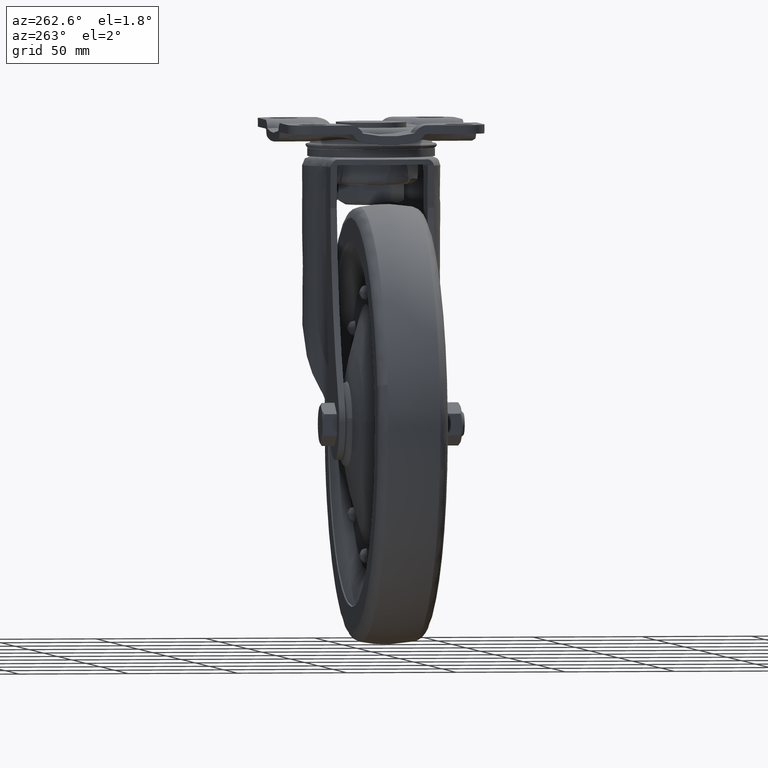
[diagram: clean part render]
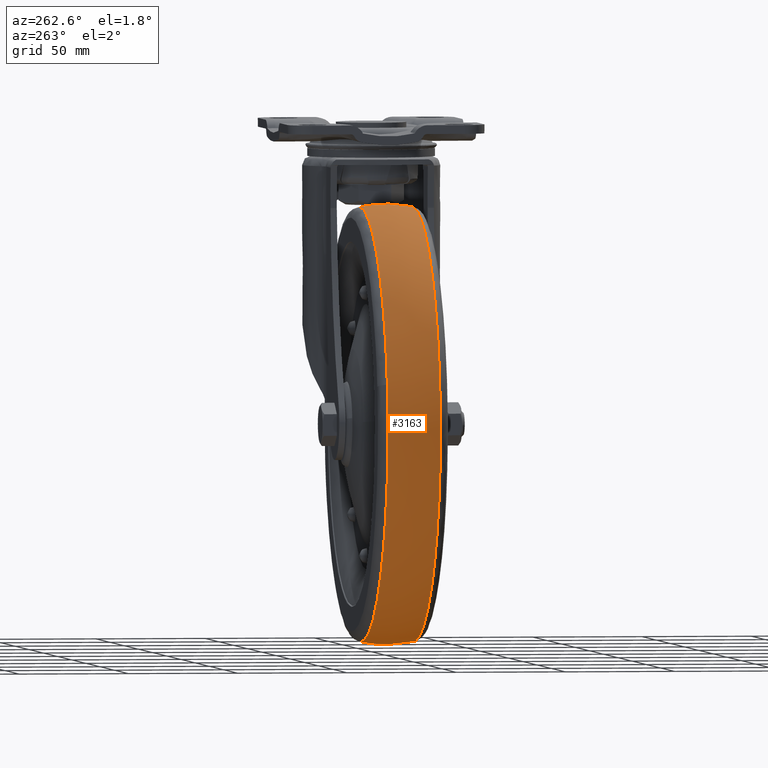
[diagram: same view with one face highlighted and labeled with its STEP entity id]
A machine part, auxiliary view. The second image highlights one B-rep face of the part: STEP entity #3163.
In plain terms, the highlighted face is a freeform B-spline surface patch.
Its self-contained STEP definition (entity closure, byte-faithful):
#2941=CARTESIAN_POINT('',(-149.542122621818010,12.000001599546319,-114.785526853800500));
#2942=VERTEX_POINT('',#2941);
#2956=CARTESIAN_POINT('',(-53.0,12.000002706169269,-36.941479722300528));
#2957=VERTEX_POINT('',#2956);
#2958=CARTESIAN_POINT('',(-53.0,12.000002706169269,-36.941479722300528));
#2959=CARTESIAN_POINT('',(-132.654749233212950,12.000002693461058,-36.941479735535076));
#2960=CARTESIAN_POINT('',(-149.542122621818040,12.000001599546312,-114.785526853800460));
#2968=(BOUNDED_CURVE()B_SPLINE_CURVE(2,(#2958,#2959,#2960),.UNSPECIFIED.,.F.,.U.)B_SPLINE_CURVE_WITH_KNOTS((3,3),(0.500000000000000,0.713703257981370),.UNSPECIFIED.)CURVE()GEOMETRIC_REPRESENTATION_ITEM()RATIONAL_B_SPLINE_CURVE((1.0,0.749631059595660,0.927299385285327))REPRESENTATION_ITEM(''));
#2969=EDGE_CURVE('',#2957,#2942,#2968,.T.);
#3035=CARTESIAN_POINT('',(-53.0,11.999999961965480,-234.516986831262300));
#3036=VERTEX_POINT('',#3035);
#3050=CARTESIAN_POINT('',(-149.542122621818010,12.000001599546321,-114.785526853800550));
#3051=CARTESIAN_POINT('',(-151.787753710058780,12.000001456869487,-125.136989282534260));
#3052=CARTESIAN_POINT('',(-151.787753716600010,12.000001311112250,-135.729233300687210));
#3053=CARTESIAN_POINT('',(-151.787753777605840,11.999999951718568,-234.516986841933600));
#3054=CARTESIAN_POINT('',(-53.0,11.999999961965480,-234.516986831262300));
#3062=(BOUNDED_CURVE()B_SPLINE_CURVE(2,(#3050,#3051,#3052,#3053,#3054),.UNSPECIFIED.,.F.,.U.)B_SPLINE_CURVE_WITH_KNOTS((3,2,3),(0.713703257981370,0.750000000000000,1.0),.UNSPECIFIED.)CURVE()GEOMETRIC_REPRESENTATION_ITEM()RATIONAL_B_SPLINE_CURVE((0.927299385285328,0.957475721590888,1.0,0.707106781186548,1.0))REPRESENTATION_ITEM(''));
#3063=EDGE_CURVE('',#2942,#3036,#3062,.T.);
#3070=CARTESIAN_POINT('',(-50.245239521025617,-13.170889275211115,-37.192683083847527));
#3071=CARTESIAN_POINT('',(-50.162390055384634,0.000004381946002,-34.229194762922361));
#3072=CARTESIAN_POINT('',(-50.245239573497116,13.170897616799328,-37.192684960729039));
#3073=CARTESIAN_POINT('',(-51.614598242837971,-13.170889275211119,-37.192683083847527));
#3074=CARTESIAN_POINT('',(-51.572932262744601,0.000004381946002,-34.229194762922354));
#3075=CARTESIAN_POINT('',(-51.614598269226505,13.170897616799333,-37.192684960729046));
#3076=CARTESIAN_POINT('',(-151.536549912854700,-13.170889275211128,-37.192683083847527));
#3077=CARTESIAN_POINT('',(-154.500038233779890,0.000004381945997,-34.229194762922361));
#3078=CARTESIAN_POINT('',(-151.536548035973170,13.170897616799326,-37.192684960729054));
#3079=CARTESIAN_POINT('',(-151.536549912854700,-13.170889275211124,-135.729232996702190));
#3080=CARTESIAN_POINT('',(-154.500038233779890,0.000004381946002,-135.729232996702250));
#3081=CARTESIAN_POINT('',(-151.536548035973170,13.170897616799335,-135.729232996702220));
#3082=CARTESIAN_POINT('',(-151.536549912854700,-13.170889275211128,-234.265782909556890));
#3083=CARTESIAN_POINT('',(-154.500038233779890,0.000004381945997,-237.229271230482110));
#3084=CARTESIAN_POINT('',(-151.536548035973170,13.170897616799326,-234.265781032675360));
#3085=CARTESIAN_POINT('',(-51.614598242837964,-13.170889275211119,-234.265782909556860));
#3086=CARTESIAN_POINT('',(-51.572932262744594,0.000004381946002,-237.229271230482110));
#3087=CARTESIAN_POINT('',(-51.614598269226498,13.170897616799332,-234.265781032675360));
#3088=CARTESIAN_POINT('',(-50.245239521025596,-13.170889275211126,-234.265782909556950));
#3089=CARTESIAN_POINT('',(-50.162390055384598,0.000004381946002,-237.229271230482030));
#3090=CARTESIAN_POINT('',(-50.245239573497074,13.170897616799326,-234.265781032675420));
#3098=(BOUNDED_SURFACE()B_SPLINE_SURFACE(2,2,((#3070,#3073,#3076,#3079,#3082,#3085,#3088),(#3071,#3074,#3077,#3080,#3083,#3086,#3089),(#3072,#3075,#3078,#3081,#3084,#3087,#3090)),.UNSPECIFIED.,.F.,.F.,.U.)B_SPLINE_SURFACE_WITH_KNOTS((3,3),(3,1,2,1,3),(0.0,26.667002324519871),(0.0,3.313708498984759,168.999133448222610,334.684558397460420,337.998266896445220),.UNSPECIFIED.)GEOMETRIC_REPRESENTATION_ITEM()RATIONAL_B_SPLINE_SURFACE(((0.880871719492154,0.875771445849044,0.615657490050456,0.870671172205934,0.615657490050456,0.875771445849044,0.880871719492154),(0.859386515940814,0.854410642269874,0.600641085051932,0.849434768598934,0.600641085051932,0.854410642269874,0.859386515940814),(0.880871733439682,0.875771459715816,0.615657499798641,0.870671185991950,0.615657499798641,0.875771459715816,0.880871733439682)))REPRESENTATION_ITEM('')SURFACE());
#3099=CARTESIAN_POINT('',(-53.0,-11.999999999997019,-36.941479169905307));
#3100=VERTEX_POINT('',#3099);
#3101=CARTESIAN_POINT('',(-53.0,-11.999999999997012,-36.941479169905328));
#3102=CARTESIAN_POINT('',(-53.000000000000014,0.000001409464736,-34.491989139417591));
#3103=CARTESIAN_POINT('',(-53.0,12.000002706169289,-36.941479722300471));
#3111=(BOUNDED_CURVE()B_SPLINE_CURVE(2,(#3101,#3102,#3103),.UNSPECIFIED.,.F.,.U.)B_SPLINE_CURVE_WITH_KNOTS((3,3),(0.458261283577760,0.541738726029016),.UNSPECIFIED.)CURVE()GEOMETRIC_REPRESENTATION_ITEM()RATIONAL_B_SPLINE_CURVE((0.868829938584044,0.851276007093683,0.868829942624338))REPRESENTATION_ITEM(''));
#3112=EDGE_CURVE('',#3100,#2957,#3111,.T.);
#3113=ORIENTED_EDGE('',*,*,#3112,.T.);
#3114=ORIENTED_EDGE('',*,*,#2969,.T.);
#3115=ORIENTED_EDGE('',*,*,#3063,.T.);
#3116=CARTESIAN_POINT('',(-53.0,-11.999999999998510,-234.516986823498800));
#3117=VERTEX_POINT('',#3116);
#3118=CARTESIAN_POINT('',(-53.000000000000007,-11.999999999998503,-234.516986823498830));
#3119=CARTESIAN_POINT('',(-53.0,-0.000000019808866,-236.966476562237890));
#3120=CARTESIAN_POINT('',(-53.000000000000007,11.999999961965489,-234.516986831262300));
#3128=(BOUNDED_CURVE()B_SPLINE_CURVE(2,(#3118,#3119,#3120),.UNSPECIFIED.,.F.,.U.)B_SPLINE_CURVE_WITH_KNOTS((3,3),(0.458261283577755,0.541738716287229),.UNSPECIFIED.)CURVE()GEOMETRIC_REPRESENTATION_ITEM()RATIONAL_B_SPLINE_CURVE((0.868829938584046,0.851276009142220,0.868829938527263))REPRESENTATION_ITEM(''));
#3129=EDGE_CURVE('',#3117,#3036,#3128,.T.);
#3130=ORIENTED_EDGE('',*,*,#3129,.F.);
#3131=CARTESIAN_POINT('',(-150.037951112145810,-12.000000000121711,-154.240212173816190));
#3132=VERTEX_POINT('',#3131);
#3133=CARTESIAN_POINT('',(-150.037951112145780,-12.000000000121711,-154.240212173816220));
#3134=CARTESIAN_POINT('',(-134.724337346460400,-12.000000000060407,-234.516986823496410));
#3135=CARTESIAN_POINT('',(-53.0,-11.999999999998510,-234.516986823498800));
#3143=(BOUNDED_CURVE()B_SPLINE_CURVE(2,(#3133,#3134,#3135),.UNSPECIFIED.,.F.,.U.)B_SPLINE_CURVE_WITH_KNOTS((3,3),(0.782161366259680,1.0),.UNSPECIFIED.)CURVE()GEOMETRIC_REPRESENTATION_ITEM()RATIONAL_B_SPLINE_CURVE((0.934335795159938,0.744786165527492,1.0))REPRESENTATION_ITEM(''));
#3144=EDGE_CURVE('',#3132,#3117,#3143,.T.);
#3145=ORIENTED_EDGE('',*,*,#3144,.F.);
#3146=CARTESIAN_POINT('',(-53.0,-11.999999999997019,-36.941479169905307));
#3147=CARTESIAN_POINT('',(-151.787753826786120,-12.000000000048232,-36.941479169903374));
#3148=CARTESIAN_POINT('',(-151.787753826773810,-12.000000000110880,-135.729232996697700));
#3149=CARTESIAN_POINT('',(-151.787753826772700,-12.000000000116803,-145.067425113059930));
#3150=CARTESIAN_POINT('',(-150.037951112145780,-12.000000000121711,-154.240212173816220));
#3158=(BOUNDED_CURVE()B_SPLINE_CURVE(2,(#3146,#3147,#3148,#3149,#3150),.UNSPECIFIED.,.F.,.U.)B_SPLINE_CURVE_WITH_KNOTS((3,2,3),(0.500000000000000,0.750000000000000,0.782161366259680),.UNSPECIFIED.)CURVE()GEOMETRIC_REPRESENTATION_ITEM()RATIONAL_B_SPLINE_CURVE((1.0,0.707106781186548,1.0,0.962320615659056,0.934335795159938))REPRESENTATION_ITEM(''));
#3159=EDGE_CURVE('',#3100,#3132,#3158,.T.);
#3160=ORIENTED_EDGE('',*,*,#3159,.F.);
#3161=EDGE_LOOP('',(#3113,#3114,#3115,#3130,#3145,#3160));
#3162=FACE_OUTER_BOUND('',#3161,.T.);
#3163=ADVANCED_FACE('',(#3162),#3098,.T.);